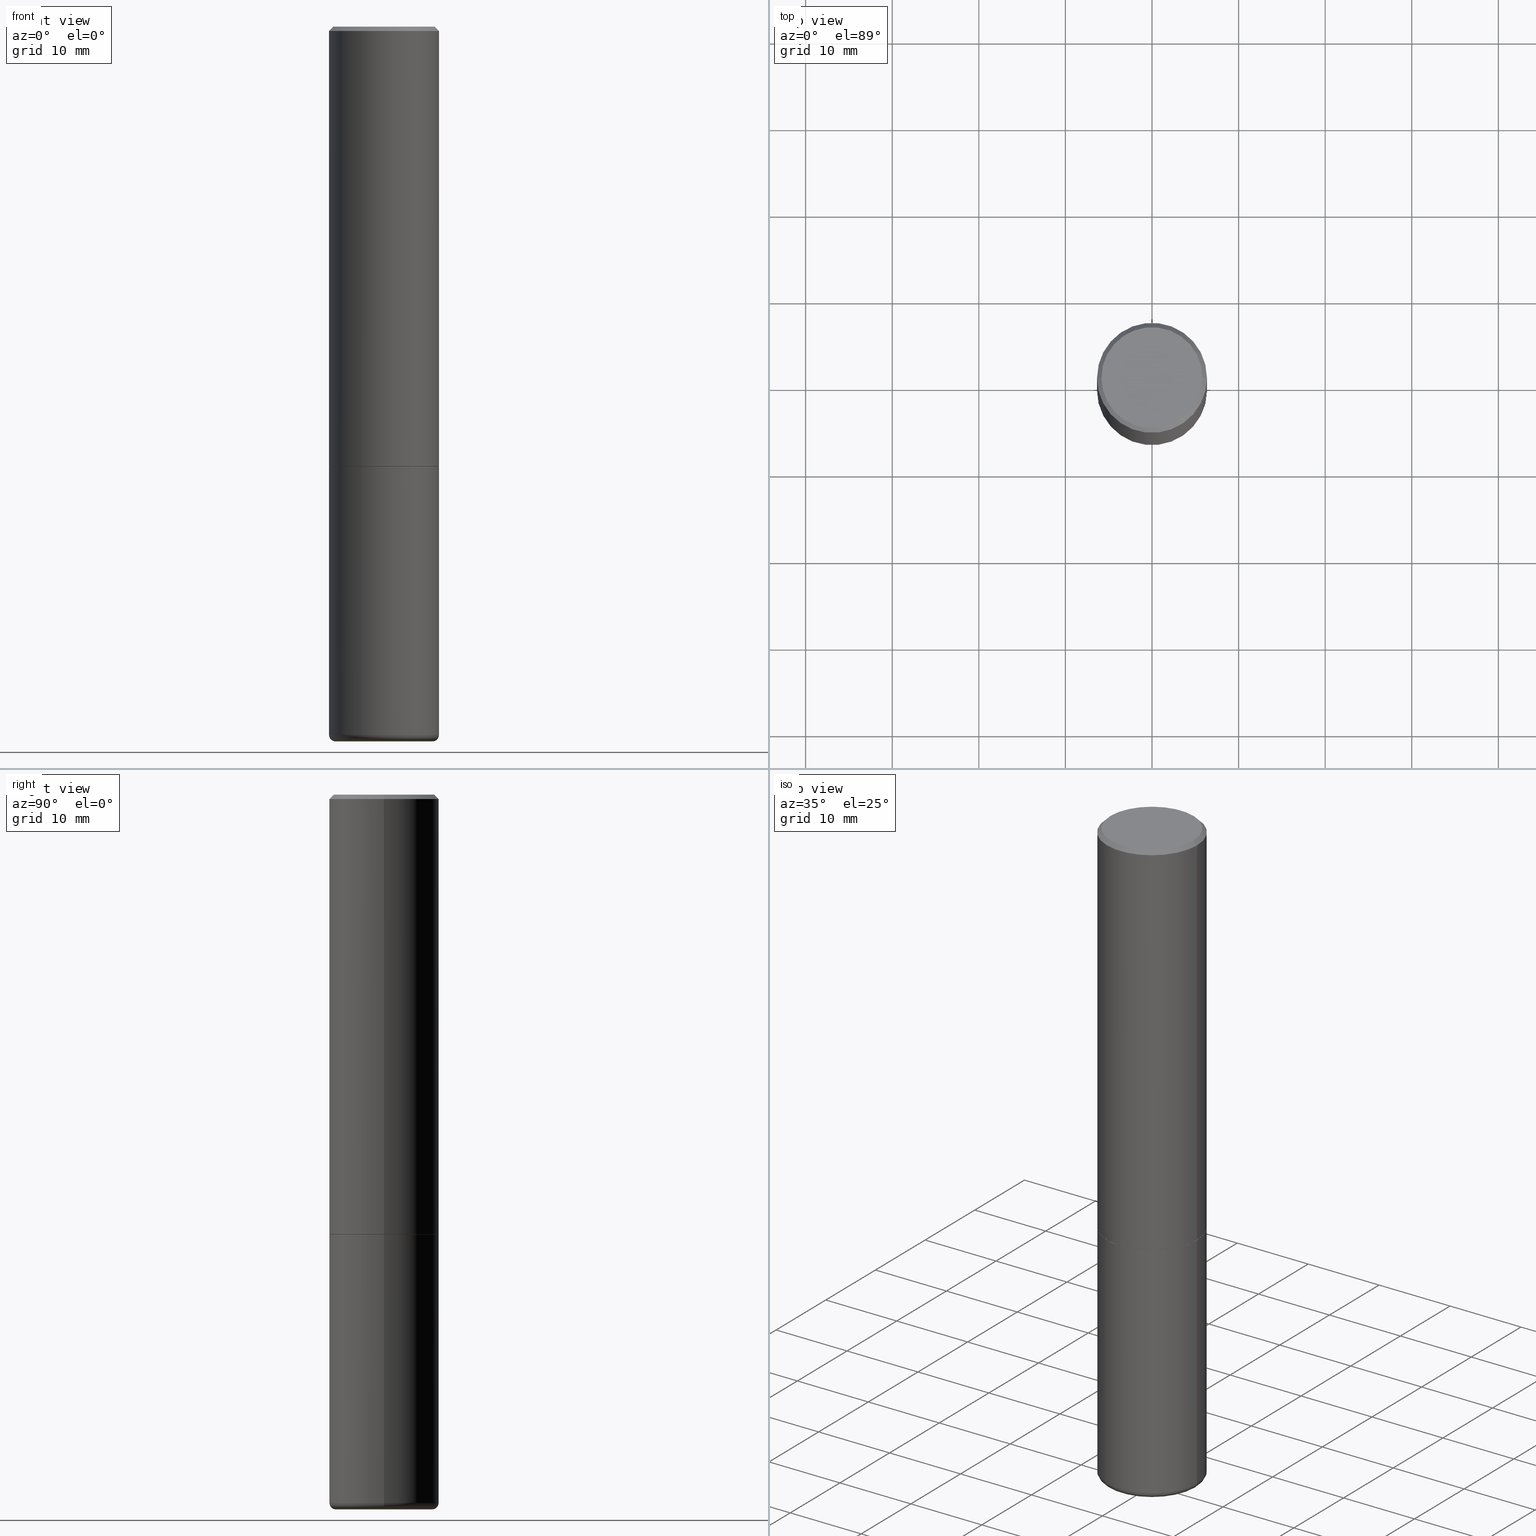
[diagram: canonical four-view strip — front | top / right | iso, engineering-drawing reading convention]
A machine part, canonical four-view strip (front | top / right | iso — engineering-drawing reading convention). The complete STEP part file that produces these views, byte-faithful:
ISO-10303-21;
HEADER;
FILE_DESCRIPTION (( 'STEP AP203' ),
    '1' );
FILE_NAME ('34801.STEP',
    '2022-11-02T20:18:55',
    ( '' ),
    ( '' ),
    'SwSTEP 2.0',
    'SolidWorks 2022',
    '' );
FILE_SCHEMA (( 'CONFIG_CONTROL_DESIGN' ));
ENDSEC;

DATA;
#1 = DATE_AND_TIME ( #267, #6 ) ;
#2 = ORIENTED_EDGE ( 'NONE', *, *, #219, .T. ) ;
#3 = CARTESIAN_POINT ( 'NONE',  ( 4.890937612370273194E-29, -6.982962677686291165E-15, -2.000000000000000000 ) ) ;
#4 = CC_DESIGN_PERSON_AND_ORGANIZATION_ASSIGNMENT ( #304, #490, ( #416 ) ) ;
#5 = EDGE_CURVE ( 'NONE', #446, #434, #256, .T. ) ;
#6 = LOCAL_TIME ( 16, 18, 55.00000000000000000, #377 ) ;
#7 = LOCAL_TIME ( 16, 18, 55.00000000000000000, #381 ) ;
#8 = FACE_OUTER_BOUND ( 'NONE', #213, .T. ) ;
#9 = PERSON_AND_ORGANIZATION_ROLE ( 'creator' ) ;
#10 = DIRECTION ( 'NONE',  ( -2.445468806185136597E-29, 3.491481338843145583E-15, 1.000000000000000000 ) ) ;
#11 = DIRECTION ( 'NONE',  ( 2.445468806185136597E-29, -3.491481338843145583E-15, -1.000000000000000000 ) ) ;
#12 = PRODUCT_RELATED_PRODUCT_CATEGORY ( 'detail', '', ( #278 ) ) ;
#13 = VECTOR ( 'NONE', #18, 39.37007874015748854 ) ;
#14 = CARTESIAN_POINT ( 'NONE',  ( -0.2499999999999994171, 1.675911042644699238E-15, -0.02000000000000012879 ) ) ;
#15 = ORIENTED_EDGE ( 'NONE', *, *, #335, .F. ) ;
#16 = PLANE ( 'NONE',  #84 ) ;
#17 = ORIENTED_EDGE ( 'NONE', *, *, #197, .T. ) ;
#18 = DIRECTION ( 'NONE',  ( 0.9999619230641714207, -6.890705306874825328E-15, -0.008726535498369011531 ) ) ;
#19 = EDGE_LOOP ( 'NONE', ( #443, #250 ) ) ;
#20 = CIRCLE ( 'NONE', #141, 0.02999999999999981501 ) ;
#21 = TOROIDAL_SURFACE ( 'NONE', #91, 0.2200000000000002232, 0.02999999999999980807 ) ;
#22 = FACE_OUTER_BOUND ( 'NONE', #277, .T. ) ;
#23 = ORIENTED_EDGE ( 'NONE', *, *, #261, .F. ) ;
#24 = APPLICATION_PROTOCOL_DEFINITION ( 'international standard', 'config_control_design', 1994, #289 ) ;
#25 = DIRECTION ( 'NONE',  ( 1.000000000000000000, -6.982962677686269866E-15, 4.883557194083114022E-29 ) ) ;
#26 = DIRECTION ( 'NONE',  ( -2.445468806185136597E-29, 3.491481338843145583E-15, 1.000000000000000000 ) ) ;
#27 = DIRECTION ( 'NONE',  ( 1.000000000000000000, -6.982962677686264344E-15, 0.000000000000000000 ) ) ;
#28 = ORIENTED_EDGE ( 'NONE', *, *, #398, .T. ) ;
#29 = ORGANIZATION ( 'UNSPECIFIED', 'UNSPECIFIED', '' ) ;
#30 = PLANE ( 'NONE',  #157 ) ;
#31 = ORIENTED_EDGE ( 'NONE', *, *, #71, .T. ) ;
#32 = CARTESIAN_POINT ( 'NONE',  ( 0.1930732039350491758, -1.267108020581511100E-14, -3.249767298070359800 ) ) ;
#33 = VERTEX_POINT ( 'NONE', #403 ) ;
#34 = DATE_AND_TIME ( #229, #400 ) ;
#35 = VERTEX_POINT ( 'NONE', #223 ) ;
#36 = AXIS2_PLACEMENT_3D ( 'NONE', #191, #10, #344 ) ;
#37 = AXIS2_PLACEMENT_3D ( 'NONE', #176, #325, #476 ) ;
#38 = PERSON_AND_ORGANIZATION ( #366, #29 ) ;
#39 = DIRECTION ( 'NONE',  ( -2.445468806185136597E-29, 3.491481338843145583E-15, 1.000000000000000000 ) ) ;
#40 = ADVANCED_FACE ( 'NONE', ( #337 ), #30, .F. ) ;
#41 = CARTESIAN_POINT ( 'NONE',  ( 4.888492143564087591E-29, -6.979471196347447369E-15, -1.998999999999999888 ) ) ;
#42 = DIRECTION ( 'NONE',  ( 1.000000000000000000, -6.982962677686266711E-15, 4.876176775795935232E-29 ) ) ;
#43 = TOROIDAL_SURFACE ( 'NONE', #83, 0.2200000000000002232, 0.02999999999999980807 ) ;
#44 = ADVANCED_FACE ( 'NONE', ( #106 ), #43, .T. ) ;
#45 = AXIS2_PLACEMENT_3D ( 'NONE', #275, #11, #435 ) ;
#46 = CC_DESIGN_APPROVAL ( #259, ( #416 ) ) ;
#47 = DIRECTION ( 'NONE',  ( 2.445468806185136597E-29, -3.491481338843145583E-15, -1.000000000000000000 ) ) ;
#48 = CARTESIAN_POINT ( 'NONE',  ( -0.2197382039350491423, -9.812890674299962335E-15, -3.250000000000000000 ) ) ;
#49 = DIRECTION ( 'NONE',  ( -2.445468806185136877E-29, 3.491481338843145188E-15, 1.000000000000000000 ) ) ;
#50 = CIRCLE ( 'NONE', #347, 0.2499999999999996669 ) ;
#51 = CONICAL_SURFACE ( 'NONE', #59, 0.2499999999999994171, 0.7853981633974489451 ) ;
#52 = DIRECTION ( 'NONE',  ( -2.445468806185136597E-29, 3.491481338843145583E-15, 1.000000000000000000 ) ) ;
#53 = ORIENTED_EDGE ( 'NONE', *, *, #162, .T. ) ;
#54 = LINE ( 'NONE', #438, #330 ) ;
#55 = ORIENTED_EDGE ( 'NONE', *, *, #206, .T. ) ;
#56 = CARTESIAN_POINT ( 'NONE',  ( 0.2299999999999992606, -1.681434332853594870E-15, 8.537024980212318048E-18 ) ) ;
#57 = ORIENTED_EDGE ( 'NONE', *, *, #69, .F. ) ;
#58 = AXIS2_PLACEMENT_3D ( 'NONE', #196, #39, #352 ) ;
#59 = AXIS2_PLACEMENT_3D ( 'NONE', #393, #317, #170 ) ;
#60 = CARTESIAN_POINT ( 'NONE',  ( 4.890937612370273194E-29, -6.982962677686291165E-15, -2.000000000000000000 ) ) ;
#61 = EDGE_LOOP ( 'NONE', ( #282, #467 ) ) ;
#62 = DIRECTION ( 'NONE',  ( 1.000000000000000000, -6.982962677686269077E-15, 0.000000000000000000 ) ) ;
#63 = DIRECTION ( 'NONE',  ( -2.445468806185136597E-29, 3.491481338843145583E-15, 1.000000000000000000 ) ) ;
#64 = ORIENTED_EDGE ( 'NONE', *, *, #248, .F. ) ;
#65 = CARTESIAN_POINT ( 'NONE',  ( 4.890937612370273194E-29, -6.982962677686291165E-15, -2.000000000000000000 ) ) ;
#66 = VECTOR ( 'NONE', #260, 39.37007874015748143 ) ;
#67 = CIRCLE ( 'NONE', #150, 0.2500000000000000555 ) ;
#68 = DIRECTION ( 'NONE',  ( 1.000000000000000000, -6.982962677686246200E-15, 0.000000000000000000 ) ) ;
#69 = EDGE_CURVE ( 'NONE', #245, #295, #20, .T. ) ;
#70 = EDGE_LOOP ( 'NONE', ( #221, #28, #329, #477 ) ) ;
#71 = EDGE_CURVE ( 'NONE', #177, #434, #449, .T. ) ;
#72 = CALENDAR_DATE ( 2022, 2, 11 ) ;
#73 = ORIENTED_EDGE ( 'NONE', *, *, #398, .F. ) ;
#74 = PLANE ( 'NONE',  #306 ) ;
#75 = CARTESIAN_POINT ( 'NONE',  ( 7.947204554791619182E-29, -1.134650187679537143E-14, -3.249767298070359800 ) ) ;
#76 = CIRCLE ( 'NONE', #297, 0.2489999999999996660 ) ;
#77 = APPROVAL_STATUS ( 'not_yet_approved' ) ;
#78 = FACE_OUTER_BOUND ( 'NONE', #186, .T. ) ;
#79 = SHAPE_DEFINITION_REPRESENTATION ( #350, #300 ) ;
#80 = LINE ( 'NONE', #268, #481 ) ;
#81 = PERSON_AND_ORGANIZATION_ROLE ( 'design_supplier' ) ;
#82 = DIRECTION ( 'NONE',  ( 2.445468806185136597E-29, -3.491481338843145583E-15, -1.000000000000000000 ) ) ;
#83 = AXIS2_PLACEMENT_3D ( 'NONE', #454, #212, #375 ) ;
#84 = AXIS2_PLACEMENT_3D ( 'NONE', #130, #285, #432 ) ;
#85 = DIRECTION ( 'NONE',  ( 2.445468806185136597E-29, -3.491481338843145583E-15, -1.000000000000000000 ) ) ;
#86 = ADVANCED_FACE ( 'NONE', ( #218 ), #74, .F. ) ;
#87 = EDGE_CURVE ( 'NONE', #33, #35, #50, .T. ) ;
#88 = CARTESIAN_POINT ( 'NONE',  ( 7.947773620101693940E-29, -1.134731435124022443E-14, -3.250000000000000000 ) ) ;
#89 = CARTESIAN_POINT ( 'NONE',  ( 0.2500000000000000555, -1.298831456884382237E-14, -3.220001142308074993 ) ) ;
#90 = EDGE_CURVE ( 'NONE', #98, #166, #80, .T. ) ;
#91 = AXIS2_PLACEMENT_3D ( 'NONE', #211, #63, #25 ) ;
#92 = FACE_OUTER_BOUND ( 'NONE', #183, .T. ) ;
#93 = ADVANCED_FACE ( 'NONE', ( #119 ), #108, .F. ) ;
#94 = ORIENTED_EDGE ( 'NONE', *, *, #394, .T. ) ;
#95 = CARTESIAN_POINT ( 'NONE',  ( 7.947204554791619182E-29, -1.134650187679537143E-14, -3.249767298070359800 ) ) ;
#96 = ORIENTED_EDGE ( 'NONE', *, *, #439, .T. ) ;
#97 = CARTESIAN_POINT ( 'NONE',  ( -0.2489999999999996660, -5.208412811295422462E-15, -2.000000000000000000 ) ) ;
#98 = VERTEX_POINT ( 'NONE', #302 ) ;
#99 = AXIS2_PLACEMENT_3D ( 'NONE', #311, #228, #346 ) ;
#100 = CIRCLE ( 'NONE', #209, 0.2499999999999996669 ) ;
#101 = APPLICATION_PROTOCOL_DEFINITION ( 'international standard', 'config_control_design', 1994, #276 ) ;
#102 = EDGE_CURVE ( 'NONE', #247, #166, #323, .T. ) ;
#103 = ORIENTED_EDGE ( 'NONE', *, *, #167, .T. ) ;
#104 = DIRECTION ( 'NONE',  ( -2.445468806185136597E-29, 3.491481338843145583E-15, 1.000000000000000000 ) ) ;
#105 = ORIENTED_EDGE ( 'NONE', *, *, #126, .T. ) ;
#106 = FACE_OUTER_BOUND ( 'NONE', #70, .T. ) ;
#107 = ORIENTED_EDGE ( 'NONE', *, *, #237, .T. ) ;
#108 = CONICAL_SURFACE ( 'NONE', #442, 0.2197382039350491423, 1.562069680534929894 ) ;
#109 = AXIS2_PLACEMENT_3D ( 'NONE', #88, #164, #272 ) ;
#110 = ORIENTED_EDGE ( 'NONE', *, *, #235, .F. ) ;
#111 = DIRECTION ( 'NONE',  ( -2.445468806185136597E-29, 3.491481338843145583E-15, 1.000000000000000000 ) ) ;
#112 = ADVANCED_FACE ( 'NONE', ( #78 ), #431, .F. ) ;
#113 = FACE_OUTER_BOUND ( 'NONE', #430, .T. ) ;
#114 = CALENDAR_DATE ( 2022, 2, 11 ) ;
#115 = CARTESIAN_POINT ( 'NONE',  ( 7.947773620101693940E-29, -1.134731435124022443E-14, -3.250000000000000000 ) ) ;
#116 = CIRCLE ( 'NONE', #339, 0.2299999999999992606 ) ;
#117 = CARTESIAN_POINT ( 'NONE',  ( 0.2499999999999994171, -1.784954126219742244E-15, -0.02000000000000012879 ) ) ;
#118 = APPROVAL_DATE_TIME ( #224, #371 ) ;
#119 = FACE_OUTER_BOUND ( 'NONE', #321, .T. ) ;
#120 = CC_DESIGN_PERSON_AND_ORGANIZATION_ASSIGNMENT ( #351, #9, ( #312 ) ) ;
#121 = FACE_OUTER_BOUND ( 'NONE', #241, .T. ) ;
#122 = ADVANCED_FACE ( 'NONE', ( #113 ), #422, .F. ) ;
#123 = AXIS2_PLACEMENT_3D ( 'NONE', #384, #417, #42 ) ;
#124 = CIRCLE ( 'NONE', #408, 0.02999999999999981501 ) ;
#125 = CARTESIAN_POINT ( 'NONE',  ( -0.2500000000000000555, -7.336411449154020205E-15, -3.220001142308074993 ) ) ;
#126 = EDGE_CURVE ( 'NONE', #166, #287, #266, .T. ) ;
#127 = EDGE_LOOP ( 'NONE', ( #96, #360, #447, #23 ) ) ;
#128 = DIRECTION ( 'NONE',  ( -2.445468806185136597E-29, 3.491481338843145583E-15, 1.000000000000000000 ) ) ;
#129 = ORIENTED_EDGE ( 'NONE', *, *, #178, .T. ) ;
#130 = CARTESIAN_POINT ( 'NONE',  ( 1.745740669421613023E-15, 0.2499999999999927003, -2.000000000000000888 ) ) ;
#131 = ORIENTED_EDGE ( 'NONE', *, *, #269, .T. ) ;
#132 = AXIS2_PLACEMENT_3D ( 'NONE', #385, #189, #322 ) ;
#133 = ADVANCED_FACE ( 'NONE', ( #230 ), #413, .T. ) ;
#134 = SECURITY_CLASSIFICATION ( '', '', #190 ) ;
#135 = DIRECTION ( 'NONE',  ( -1.000000000000000000, 7.105427357600969515E-15, 0.000000000000000000 ) ) ;
#136 = ORIENTED_EDGE ( 'NONE', *, *, #197, .F. ) ;
#137 = CARTESIAN_POINT ( 'NONE',  ( 0.2197382039350491423, -1.285482785937054132E-14, -3.250000000000000000 ) ) ;
#138 = ORIENTED_EDGE ( 'NONE', *, *, #303, .F. ) ;
#139 = CC_DESIGN_PERSON_AND_ORGANIZATION_ASSIGNMENT ( #38, #81, ( #416 ) ) ;
#140 = PERSON_AND_ORGANIZATION_ROLE ( 'design_owner' ) ;
#141 = AXIS2_PLACEMENT_3D ( 'NONE', #368, #255, #68 ) ;
#142 = CIRCLE ( 'NONE', #482, 0.2499999999999994171 ) ;
#143 = ORIENTED_EDGE ( 'NONE', *, *, #372, .F. ) ;
#144 = DIMENSIONAL_EXPONENTS ( 1.000000000000000000, 0.000000000000000000, 0.000000000000000000, 0.000000000000000000, 0.000000000000000000, 0.000000000000000000, 0.000000000000000000 ) ;
#145 = DIRECTION ( 'NONE',  ( 1.000000000000000000, -6.982962677686265922E-15, 4.876176775795935793E-29 ) ) ;
#146 = EDGE_CURVE ( 'NONE', #35, #33, #200, .T. ) ;
#147 = MECHANICAL_CONTEXT ( 'NONE', #289, 'mechanical' ) ;
#148 = VERTEX_POINT ( 'NONE', #380 ) ;
#149 = CARTESIAN_POINT ( 'NONE',  ( 0.000000000000000000, 0.000000000000000000, 0.000000000000000000 ) ) ;
#150 = AXIS2_PLACEMENT_3D ( 'NONE', #220, #214, #62 ) ;
#151 = DIRECTION ( 'NONE',  ( -2.438088387897960049E-29, 3.491481338843145188E-15, 1.000000000000000000 ) ) ;
#152 = PERSON_AND_ORGANIZATION ( #366, #29 ) ;
#153 = DIRECTION ( 'NONE',  ( -1.000000000000000000, 6.982962677686265922E-15, -4.876176775795935793E-29 ) ) ;
#154 = DIRECTION ( 'NONE',  ( -2.445468806185136597E-29, 3.491481338843145583E-15, 1.000000000000000000 ) ) ;
#155 = DATE_TIME_ROLE ( 'classification_date' ) ;
#156 = DIRECTION ( 'NONE',  ( -2.445468806185136597E-29, 3.491481338843145583E-15, 1.000000000000000000 ) ) ;
#157 = AXIS2_PLACEMENT_3D ( 'NONE', #411, #151, #145 ) ;
#158 = LOCAL_TIME ( 16, 18, 55.00000000000000000, #410 ) ;
#159 = APPROVAL_DATE_TIME ( #194, #259 ) ;
#160 = EDGE_LOOP ( 'NONE', ( #388, #406, #169, #57 ) ) ;
#161 = CARTESIAN_POINT ( 'NONE',  ( 0.2499999999999996669, -8.725211865769010891E-15, -1.998999999999999888 ) ) ;
#162 = EDGE_CURVE ( 'NONE', #370, #247, #310, .T. ) ;
#163 = CARTESIAN_POINT ( 'NONE',  ( 7.929934496680489280E-29, -1.132408133894856808E-14, -3.243025033220710451 ) ) ;
#164 = DIRECTION ( 'NONE',  ( -2.445468806185136597E-29, 3.491481338843145583E-15, 1.000000000000000000 ) ) ;
#165 = AXIS2_PLACEMENT_3D ( 'NONE', #75, #82, #378 ) ;
#166 = VERTEX_POINT ( 'NONE', #161 ) ;
#167 = EDGE_CURVE ( 'NONE', #290, #148, #338, .T. ) ;
#168 = CARTESIAN_POINT ( 'NONE',  ( -0.2499999999999994171, 1.675911042644699238E-15, -0.02000000000000012879 ) ) ;
#169 = ORIENTED_EDGE ( 'NONE', *, *, #439, .F. ) ;
#170 = DIRECTION ( 'NONE',  ( -1.000000000000000000, 6.982962677686266711E-15, 0.000000000000000000 ) ) ;
#171 = ORIENTED_EDGE ( 'NONE', *, *, #87, .F. ) ;
#172 = FACE_OUTER_BOUND ( 'NONE', #470, .T. ) ;
#173 = ORIENTED_EDGE ( 'NONE', *, *, #167, .F. ) ;
#174 = AXIS2_PLACEMENT_3D ( 'NONE', #41, #457, #420 ) ;
#175 = AXIS2_PLACEMENT_3D ( 'NONE', #425, #85, #232 ) ;
#176 = CARTESIAN_POINT ( 'NONE',  ( 0.000000000000000000, 0.000000000000000000, 0.000000000000000000 ) ) ;
#177 = VERTEX_POINT ( 'NONE', #163 ) ;
#178 = EDGE_CURVE ( 'NONE', #294, #295, #313, .T. ) ;
#179 =( NAMED_UNIT ( * ) SI_UNIT ( $, .STERADIAN. ) SOLID_ANGLE_UNIT ( ) );
#180 = ORIENTED_EDGE ( 'NONE', *, *, #386, .F. ) ;
#181 = CONICAL_SURFACE ( 'NONE', #45, 0.2499999999999994171, 0.7853981633974489451 ) ;
#182 = CC_DESIGN_DATE_AND_TIME_ASSIGNMENT ( #1, #379, ( #312 ) ) ;
#183 = EDGE_LOOP ( 'NONE', ( #173, #17, #215, #138 ) ) ;
#184 = DIRECTION ( 'NONE',  ( 1.000000000000000000, -6.982962677686265133E-15, 0.000000000000000000 ) ) ;
#185 = CYLINDRICAL_SURFACE ( 'NONE', #452, 0.2499999999999998612 ) ;
#186 = EDGE_LOOP ( 'NONE', ( #395, #31, #236 ) ) ;
#187 = APPROVAL_DATE_TIME ( #374, #365 ) ;
#188 = VECTOR ( 'NONE', #429, 39.37007874015748143 ) ;
#189 = DIRECTION ( 'NONE',  ( -2.445468806185136597E-29, 3.491481338843145583E-15, 1.000000000000000000 ) ) ;
#190 = SECURITY_CLASSIFICATION_LEVEL ( 'unclassified' ) ;
#191 = CARTESIAN_POINT ( 'NONE',  ( -2.087702828670439639E-46, 2.980686340760894400E-32, 8.537024980200822558E-18 ) ) ;
#192 = ADVANCED_FACE ( 'NONE', ( #8 ), #444, .T. ) ;
#193 = CARTESIAN_POINT ( 'NONE',  ( -0.2489999999999996660, -5.213711265643644864E-15, -2.000000000000000000 ) ) ;
#194 = DATE_AND_TIME ( #114, #7 ) ;
#195 = LINE ( 'NONE', #349, #225 ) ;
#196 = CARTESIAN_POINT ( 'NONE',  ( 4.890937612370273194E-29, -6.982962677686291165E-15, -2.000000000000000000 ) ) ;
#197 = EDGE_CURVE ( 'NONE', #290, #287, #461, .T. ) ;
#198 = CARTESIAN_POINT ( 'NONE',  ( 4.890937612370304688E-31, -6.982962677686335982E-17, -0.02000000000000012879 ) ) ;
#199 = DIRECTION ( 'NONE',  ( -0.7071067811865479058, 2.468850131082261399E-15, -0.7071067811865470176 ) ) ;
#200 = CIRCLE ( 'NONE', #58, 0.2499999999999996669 ) ;
#201 = CYLINDRICAL_SURFACE ( 'NONE', #37, 0.2499999999999998612 ) ;
#202 = ORIENTED_EDGE ( 'NONE', *, *, #102, .F. ) ;
#203 = DIRECTION ( 'NONE',  ( -2.445468806185136597E-29, 3.491481338843145583E-15, 1.000000000000000000 ) ) ;
#204 = EDGE_LOOP ( 'NONE', ( #480, #364, #316, #202 ) ) ;
#205 = LINE ( 'NONE', #279, #188 ) ;
#206 = EDGE_CURVE ( 'NONE', #177, #446, #195, .T. ) ;
#207 = VERTEX_POINT ( 'NONE', #463 ) ;
#208 = AXIS2_PLACEMENT_3D ( 'NONE', #115, #47, #308 ) ;
#209 = AXIS2_PLACEMENT_3D ( 'NONE', #314, #466, #389 ) ;
#210 = ADVANCED_FACE ( 'NONE', ( #121 ), #231, .F. ) ;
#211 = CARTESIAN_POINT ( 'NONE',  ( 7.874412349394905166E-29, -1.124257389942225570E-14, -3.220001142308074993 ) ) ;
#212 = DIRECTION ( 'NONE',  ( -2.445468806185136597E-29, 3.491481338843145583E-15, 1.000000000000000000 ) ) ;
#213 = EDGE_LOOP ( 'NONE', ( #2, #53, #274, #324 ) ) ;
#214 = DIRECTION ( 'NONE',  ( -2.445468806185136597E-29, 3.491481338843145583E-15, 1.000000000000000000 ) ) ;
#215 = ORIENTED_EDGE ( 'NONE', *, *, #248, .T. ) ;
#216 = CC_DESIGN_APPROVAL ( #371, ( #312 ) ) ;
#217 = DIRECTION ( 'NONE',  ( -2.445468806185136597E-29, 3.491481338843145583E-15, 1.000000000000000000 ) ) ;
#218 = FACE_OUTER_BOUND ( 'NONE', #392, .T. ) ;
#219 = EDGE_CURVE ( 'NONE', #98, #370, #271, .T. ) ;
#220 = CARTESIAN_POINT ( 'NONE',  ( 7.874412349394905166E-29, -1.124257389942225570E-14, -3.220001142308074993 ) ) ;
#221 = ORIENTED_EDGE ( 'NONE', *, *, #286, .F. ) ;
#222 = PERSON_AND_ORGANIZATION ( #366, #29 ) ;
#223 = CARTESIAN_POINT ( 'NONE',  ( 0.2499999999999996669, -8.728703347107855476E-15, -2.000000000000000000 ) ) ;
#224 = DATE_AND_TIME ( #72, #158 ) ;
#225 = VECTOR ( 'NONE', #270, 39.37007874015748143 ) ;
#226 = DIRECTION ( 'NONE',  ( -1.000000000000000000, 6.982962677686265133E-15, 0.000000000000000000 ) ) ;
#227 = DIRECTION ( 'NONE',  ( 0.7071067811865232589, -2.468850131082003836E-15, 0.7071067811865715536 ) ) ;
#228 = DIRECTION ( 'NONE',  ( -2.445468806185136597E-29, 3.491481338843145583E-15, 1.000000000000000000 ) ) ;
#229 = CALENDAR_DATE ( 2022, 2, 11 ) ;
#230 = FACE_OUTER_BOUND ( 'NONE', #293, .T. ) ;
#231 = CONICAL_SURFACE ( 'NONE', #175, 0.1930732039350491758, 1.535889741755009918 ) ;
#232 = DIRECTION ( 'NONE',  ( -1.000000000000000000, 6.982962677686266711E-15, 0.000000000000000000 ) ) ;
#233 = UNCERTAINTY_MEASURE_WITH_UNIT (LENGTH_MEASURE( 1.000000000000000082E-05 ), #331, 'distance_accuracy_value', 'NONE');
#234 = LINE ( 'NONE', #387, #315 ) ;
#235 = EDGE_CURVE ( 'NONE', #294, #33, #205, .T. ) ;
#236 = ORIENTED_EDGE ( 'NONE', *, *, #5, .F. ) ;
#237 = EDGE_CURVE ( 'NONE', #166, #247, #100, .T. ) ;
#238 = DIRECTION ( 'NONE',  ( 7.105427357601001859E-15, 1.000000000000000000, -3.491481338843145583E-15 ) ) ;
#239 = CLOSED_SHELL ( 'NONE', ( #192, #448, #309, #243, #133, #479, #40, #86 ) ) ;
#240 = AXIS2_PLACEMENT_3D ( 'NONE', #65, #217, #453 ) ;
#241 = EDGE_LOOP ( 'NONE', ( #485, #55, #15 ) ) ;
#242 = LINE ( 'NONE', #137, #13 ) ;
#243 = ADVANCED_FACE ( 'NONE', ( #172 ), #51, .T. ) ;
#244 = DIRECTION ( 'NONE',  ( -2.445468806185136877E-29, 3.491481338843145188E-15, 1.000000000000000000 ) ) ;
#245 = VERTEX_POINT ( 'NONE', #468 ) ;
#246 = LINE ( 'NONE', #48, #390 ) ;
#247 = VERTEX_POINT ( 'NONE', #426 ) ;
#248 = EDGE_CURVE ( 'NONE', #287, #252, #489, .T. ) ;
#249 = VECTOR ( 'NONE', #382, 39.37007874015748854 ) ;
#250 = ORIENTED_EDGE ( 'NONE', *, *, #87, .T. ) ;
#251 = FACE_OUTER_BOUND ( 'NONE', #474, .T. ) ;
#252 = VERTEX_POINT ( 'NONE', #168 ) ;
#253 = ORIENTED_EDGE ( 'NONE', *, *, #296, .F. ) ;
#254 = FACE_OUTER_BOUND ( 'NONE', #204, .T. ) ;
#255 = DIRECTION ( 'NONE',  ( -6.982962677686266711E-15, -1.000000000000000000, 3.491481338843145583E-15 ) ) ;
#256 = CIRCLE ( 'NONE', #280, 0.1930732039350491758 ) ;
#257 = AXIS2_PLACEMENT_3D ( 'NONE', #198, #203, #319 ) ;
#258 = PERSON_AND_ORGANIZATION ( #366, #29 ) ;
#259 = APPROVAL ( #340, 'UNSPECIFIED' ) ;
#260 = DIRECTION ( 'NONE',  ( -0.9993908270190957621, 6.856857904024556470E-15, -0.03489949670250108021 ) ) ;
#261 = EDGE_CURVE ( 'NONE', #295, #35, #54, .T. ) ;
#262 = DIRECTION ( 'NONE',  ( -2.445468806185136877E-29, 3.491481338843145188E-15, 1.000000000000000000 ) ) ;
#263 =( GEOMETRIC_REPRESENTATION_CONTEXT ( 3 ) GLOBAL_UNCERTAINTY_ASSIGNED_CONTEXT ( ( #233 ) ) GLOBAL_UNIT_ASSIGNED_CONTEXT ( ( #331, #483, #179 ) ) REPRESENTATION_CONTEXT ( 'NONE', 'WORKASPACE' ) );
#264 = CARTESIAN_POINT ( 'NONE',  ( 0.2499999999999995282, -1.745740669421563325E-15, 1.219044193948981566E-29 ) ) ;
#265 = CC_DESIGN_PERSON_AND_ORGANIZATION_ASSIGNMENT ( #258, #140, ( #278 ) ) ;
#266 = LINE ( 'NONE', #264, #488 ) ;
#267 = CALENDAR_DATE ( 2022, 2, 11 ) ;
#268 = CARTESIAN_POINT ( 'NONE',  ( 0.2489999999999996660, -8.721720384430167884E-15, -2.000000000000000000 ) ) ;
#269 = EDGE_CURVE ( 'NONE', #148, #290, #116, .T. ) ;
#270 = DIRECTION ( 'NONE',  ( 0.9993908270190957621, -6.978169709227541488E-15, -0.03489949670250108021 ) ) ;
#271 = CIRCLE ( 'NONE', #132, 0.2489999999999996660 ) ;
#272 = DIRECTION ( 'NONE',  ( 1.000000000000000000, -6.982962677686265133E-15, 0.000000000000000000 ) ) ;
#273 = MANIFOLD_SOLID_BREP ( 'Body-Move/Copy2[2]', #239 ) ;
#274 = ORIENTED_EDGE ( 'NONE', *, *, #237, .F. ) ;
#275 = CARTESIAN_POINT ( 'NONE',  ( 4.890937612370304688E-31, -6.982962677686335982E-17, -0.02000000000000012879 ) ) ;
#276 = APPLICATION_CONTEXT ( 'configuration controlled 3d designs of mechanical parts and assemblies' ) ;
#277 = EDGE_LOOP ( 'NONE', ( #110, #129, #326, #171 ) ) ;
#278 = PRODUCT ( '34801', '34801', '', ( #147 ) ) ;
#279 = CARTESIAN_POINT ( 'NONE',  ( -0.2499999999999998612, 1.776356839400249479E-15, -1.229733772563725745E-29 ) ) ;
#280 = AXIS2_PLACEMENT_3D ( 'NONE', #332, #26, #405 ) ;
#281 = VECTOR ( 'NONE', #199, 39.37007874015748854 ) ;
#282 = ORIENTED_EDGE ( 'NONE', *, *, #219, .F. ) ;
#283 = LINE ( 'NONE', #14, #281 ) ;
#284 = ORIENTED_EDGE ( 'NONE', *, *, #102, .T. ) ;
#285 = DIRECTION ( 'NONE',  ( 2.438088387897960049E-29, -3.491481338843145188E-15, -1.000000000000000000 ) ) ;
#286 = EDGE_CURVE ( 'NONE', #207, #294, #124, .T. ) ;
#287 = VERTEX_POINT ( 'NONE', #396 ) ;
#288 = FACE_OUTER_BOUND ( 'NONE', #160, .T. ) ;
#289 = APPLICATION_CONTEXT ( 'configuration controlled 3d designs of mechanical parts and assemblies' ) ;
#290 = VERTEX_POINT ( 'NONE', #56 ) ;
#291 = CC_DESIGN_APPROVAL ( #365, ( #134 ) ) ;
#292 = DIRECTION ( 'NONE',  ( -2.445468806185136597E-29, 3.491481338843145583E-15, 1.000000000000000000 ) ) ;
#293 = EDGE_LOOP ( 'NONE', ( #358, #284, #105, #487 ) ) ;
#294 = VERTEX_POINT ( 'NONE', #125 ) ;
#295 = VERTEX_POINT ( 'NONE', #89 ) ;
#296 = EDGE_CURVE ( 'NONE', #446, #245, #242, .T. ) ;
#297 = AXIS2_PLACEMENT_3D ( 'NONE', #60, #373, #27 ) ;
#298 = CARTESIAN_POINT ( 'NONE',  ( 4.890937612370304688E-31, -6.982962677686335982E-17, -0.02000000000000012879 ) ) ;
#299 = CARTESIAN_POINT ( 'NONE',  ( -0.1930732039350491758, -9.998278899655613929E-15, -3.249767298070359800 ) ) ;
#300 = ADVANCED_BREP_SHAPE_REPRESENTATION ( '34801', ( #428, #273, #433 ), #263 ) ;
#301 = COORDINATED_UNIVERSAL_TIME_OFFSET ( 5, 0, .BEHIND. ) ;
#302 = CARTESIAN_POINT ( 'NONE',  ( 0.2489999999999996660, -8.721720384430167884E-15, -2.000000000000000000 ) ) ;
#303 = EDGE_CURVE ( 'NONE', #148, #252, #283, .T. ) ;
#304 = PERSON_AND_ORGANIZATION ( #366, #29 ) ;
#305 = DIRECTION ( 'NONE',  ( 2.445468806185136597E-29, -3.491481338843145583E-15, -1.000000000000000000 ) ) ;
#306 = AXIS2_PLACEMENT_3D ( 'NONE', #327, #459, #153 ) ;
#307 = APPROVAL_PERSON_ORGANIZATION ( #402, #371, #412 ) ;
#308 = DIRECTION ( 'NONE',  ( -1.000000000000000000, 6.982962677686265133E-15, 0.000000000000000000 ) ) ;
#309 = ADVANCED_FACE ( 'NONE', ( #92 ), #181, .T. ) ;
#310 = LINE ( 'NONE', #193, #465 ) ;
#311 = CARTESIAN_POINT ( 'NONE',  ( 7.874412349394905166E-29, -1.124257389942225570E-14, -3.220001142308074993 ) ) ;
#312 = PRODUCT_DEFINITION ( 'UNKNOWN', '', #416, #333 ) ;
#313 = CIRCLE ( 'NONE', #99, 0.2500000000000000555 ) ;
#314 = CARTESIAN_POINT ( 'NONE',  ( 4.888492143564087591E-29, -6.979471196347447369E-15, -1.998999999999999888 ) ) ;
#315 = VECTOR ( 'NONE', #49, 39.37007874015748143 ) ;
#316 = ORIENTED_EDGE ( 'NONE', *, *, #90, .T. ) ;
#317 = DIRECTION ( 'NONE',  ( 2.445468806185136597E-29, -3.491481338843145583E-15, -1.000000000000000000 ) ) ;
#318 = ORIENTED_EDGE ( 'NONE', *, *, #335, .T. ) ;
#319 = DIRECTION ( 'NONE',  ( 1.000000000000000000, -6.982962677686266711E-15, 0.000000000000000000 ) ) ;
#320 = CC_DESIGN_PERSON_AND_ORGANIZATION_ASSIGNMENT ( #419, #345, ( #134 ) ) ;
#321 = EDGE_LOOP ( 'NONE', ( #318, #450, #73, #143 ) ) ;
#322 = DIRECTION ( 'NONE',  ( 1.000000000000000000, -6.982962677686264344E-15, 0.000000000000000000 ) ) ;
#323 = CIRCLE ( 'NONE', #174, 0.2499999999999996669 ) ;
#324 = ORIENTED_EDGE ( 'NONE', *, *, #90, .F. ) ;
#325 = DIRECTION ( 'NONE',  ( -2.445468806185136597E-29, 3.491481338843145583E-15, 1.000000000000000000 ) ) ;
#326 = ORIENTED_EDGE ( 'NONE', *, *, #261, .T. ) ;
#327 = CARTESIAN_POINT ( 'NONE',  ( 1.606081415867835940E-15, 0.2299999999999992606, -7.987721954438205014E-16 ) ) ;
#328 = DIRECTION ( 'NONE',  ( 0.000000000000000000, 0.000000000000000000, 1.000000000000000000 ) ) ;
#329 = ORIENTED_EDGE ( 'NONE', *, *, #69, .T. ) ;
#330 = VECTOR ( 'NONE', #244, 39.37007874015748143 ) ;
#331 =( CONVERSION_BASED_UNIT ( 'INCH', #484 ) LENGTH_UNIT ( ) NAMED_UNIT ( #144 ) );
#332 = CARTESIAN_POINT ( 'NONE',  ( 7.947204554791619182E-29, -1.134650187679537143E-14, -3.249767298070359800 ) ) ;
#333 = DESIGN_CONTEXT ( 'detailed design', #276, 'design' ) ;
#334 = DIRECTION ( 'NONE',  ( 1.000000000000000000, -6.982962677686266711E-15, 4.876176775795935793E-29 ) ) ;
#335 = EDGE_CURVE ( 'NONE', #434, #446, #399, .T. ) ;
#336 = CARTESIAN_POINT ( 'NONE',  ( -0.1930732039350491758, -9.998278899655613929E-15, -3.249767298070359800 ) ) ;
#337 = FACE_OUTER_BOUND ( 'NONE', #61, .T. ) ;
#338 = CIRCLE ( 'NONE', #36, 0.2299999999999992606 ) ;
#339 = AXIS2_PLACEMENT_3D ( 'NONE', #361, #128, #471 ) ;
#340 = APPROVAL_STATUS ( 'not_yet_approved' ) ;
#341 = ADVANCED_FACE ( 'NONE', ( #22 ), #201, .T. ) ;
#342 = DIRECTION ( 'NONE',  ( -0.7071067811865232589, 7.493145998870265808E-15, 0.7071067811865715536 ) ) ;
#343 = APPROVAL_ROLE ( '' ) ;
#344 = DIRECTION ( 'NONE',  ( 1.000000000000000000, -6.982962677686266711E-15, 4.875813741439115469E-29 ) ) ;
#345 = PERSON_AND_ORGANIZATION_ROLE ( 'classification_officer' ) ;
#346 = DIRECTION ( 'NONE',  ( 1.000000000000000000, -6.982962677686269077E-15, 0.000000000000000000 ) ) ;
#347 = AXIS2_PLACEMENT_3D ( 'NONE', #418, #154, #491 ) ;
#348 = CALENDAR_DATE ( 2022, 2, 11 ) ;
#349 = CARTESIAN_POINT ( 'NONE',  ( 0.1930732039350491758, -1.267108020581511100E-14, -3.249767298070359800 ) ) ;
#350 = PRODUCT_DEFINITION_SHAPE ( 'NONE', 'NONE',  #312 ) ;
#351 = PERSON_AND_ORGANIZATION ( #366, #29 ) ;
#352 = DIRECTION ( 'NONE',  ( 1.000000000000000000, -6.982962677686268288E-15, 0.000000000000000000 ) ) ;
#353 = ADVANCED_FACE ( 'NONE', ( #359 ), #16, .F. ) ;
#354 = DIRECTION ( 'NONE',  ( -0.9999619230641714207, 6.952228252019186602E-15, -0.008726535498369011531 ) ) ;
#355 = CARTESIAN_POINT ( 'NONE',  ( 7.947773620101693940E-29, -1.134731435124022443E-14, -3.250000000000000000 ) ) ;
#356 = AXIS2_PLACEMENT_3D ( 'NONE', #369, #292, #486 ) ;
#357 = CC_DESIGN_SECURITY_CLASSIFICATION ( #134, ( #416 ) ) ;
#358 = ORIENTED_EDGE ( 'NONE', *, *, #394, .F. ) ;
#359 = FACE_OUTER_BOUND ( 'NONE', #19, .T. ) ;
#360 = ORIENTED_EDGE ( 'NONE', *, *, #235, .T. ) ;
#361 = CARTESIAN_POINT ( 'NONE',  ( -2.087702828670439639E-46, 2.980686340760894400E-32, 8.537024980200822558E-18 ) ) ;
#362 = DIRECTION ( 'NONE',  ( 1.000000000000000000, -6.982962677686266711E-15, 0.000000000000000000 ) ) ;
#363 = CIRCLE ( 'NONE', #460, 0.2197382039350491423 ) ;
#364 = ORIENTED_EDGE ( 'NONE', *, *, #469, .T. ) ;
#365 = APPROVAL ( #458, 'UNSPECIFIED' ) ;
#366 = PERSON ( 'UNSPECIFIED', 'UNSPECIFIED', 'UNSPECIFIED', ('UNSPECIFIED'), ('UNSPECIFIED'), ('UNSPECIFIED') ) ;
#367 = CYLINDRICAL_SURFACE ( 'NONE', #356, 0.2499999999999995282 ) ;
#368 = CARTESIAN_POINT ( 'NONE',  ( 0.2200000000000002232, -1.277882568851323406E-14, -3.220001142308074993 ) ) ;
#369 = CARTESIAN_POINT ( 'NONE',  ( 0.000000000000000000, 0.000000000000000000, 0.000000000000000000 ) ) ;
#370 = VERTEX_POINT ( 'NONE', #97 ) ;
#371 = APPROVAL ( #77, 'UNSPECIFIED' ) ;
#372 = EDGE_CURVE ( 'NONE', #434, #207, #246, .T. ) ;
#373 = DIRECTION ( 'NONE',  ( -2.445468806185136597E-29, 3.491481338843145583E-15, 1.000000000000000000 ) ) ;
#374 = DATE_AND_TIME ( #348, #424 ) ;
#375 = DIRECTION ( 'NONE',  ( 1.000000000000000000, -6.982962677686269866E-15, 4.883557194083114022E-29 ) ) ;
#376 = AXIS2_PLACEMENT_3D ( 'NONE', #95, #52, #362 ) ;
#377 = COORDINATED_UNIVERSAL_TIME_OFFSET ( 5, 0, .BEHIND. ) ;
#378 = DIRECTION ( 'NONE',  ( -1.000000000000000000, 6.982962677686266711E-15, 0.000000000000000000 ) ) ;
#379 = DATE_TIME_ROLE ( 'creation_date' ) ;
#380 = CARTESIAN_POINT ( 'NONE',  ( -0.2299999999999992606, 1.640996229256267786E-15, 8.537024980189468815E-18 ) ) ;
#381 = COORDINATED_UNIVERSAL_TIME_OFFSET ( 5, 0, .BEHIND. ) ;
#382 = DIRECTION ( 'NONE',  ( 0.7071067811865479058, -7.319954787623256045E-15, -0.7071067811865470176 ) ) ;
#383 = CIRCLE ( 'NONE', #109, 0.2197382039350491423 ) ;
#384 = CARTESIAN_POINT ( 'NONE',  ( 0.000000000000000000, 0.000000000000000000, 0.000000000000000000 ) ) ;
#385 = CARTESIAN_POINT ( 'NONE',  ( 4.890937612370273194E-29, -6.982962677686291165E-15, -2.000000000000000000 ) ) ;
#386 = EDGE_CURVE ( 'NONE', #245, #207, #383, .T. ) ;
#387 = CARTESIAN_POINT ( 'NONE',  ( -0.2499999999999995282, 1.776356839400247112E-15, -1.229733772563724063E-29 ) ) ;
#388 = ORIENTED_EDGE ( 'NONE', *, *, #386, .T. ) ;
#389 = DIRECTION ( 'NONE',  ( 1.000000000000000000, -6.982962677686264344E-15, 0.000000000000000000 ) ) ;
#390 = VECTOR ( 'NONE', #354, 39.37007874015748854 ) ;
#391 = APPROVAL_PERSON_ORGANIZATION ( #152, #365, #462 ) ;
#392 = EDGE_LOOP ( 'NONE', ( #131, #103 ) ) ;
#393 = CARTESIAN_POINT ( 'NONE',  ( 4.890937612370304688E-31, -6.982962677686335982E-17, -0.02000000000000012879 ) ) ;
#394 = EDGE_CURVE ( 'NONE', #247, #252, #234, .T. ) ;
#395 = ORIENTED_EDGE ( 'NONE', *, *, #206, .F. ) ;
#396 = CARTESIAN_POINT ( 'NONE',  ( 0.2499999999999994171, -1.784954126219742244E-15, -0.02000000000000012879 ) ) ;
#397 = DIRECTION ( 'NONE',  ( -2.445468806185136597E-29, 3.491481338843145583E-15, 1.000000000000000000 ) ) ;
#398 = EDGE_CURVE ( 'NONE', #207, #245, #363, .T. ) ;
#399 = CIRCLE ( 'NONE', #376, 0.1930732039350491758 ) ;
#400 = LOCAL_TIME ( 16, 18, 55.00000000000000000, #301 ) ;
#401 = ORIENTED_EDGE ( 'NONE', *, *, #269, .F. ) ;
#402 = PERSON_AND_ORGANIZATION ( #366, #29 ) ;
#403 = CARTESIAN_POINT ( 'NONE',  ( -0.2499999999999996669, -7.336411449154023361E-15, -2.000000000000000000 ) ) ;
#404 = DIRECTION ( 'NONE',  ( 1.000000000000000000, -6.982962677686266711E-15, 0.000000000000000000 ) ) ;
#405 = DIRECTION ( 'NONE',  ( 1.000000000000000000, -6.982962677686266711E-15, 0.000000000000000000 ) ) ;
#406 = ORIENTED_EDGE ( 'NONE', *, *, #286, .T. ) ;
#407 = ORIENTED_EDGE ( 'NONE', *, *, #475, .T. ) ;
#408 = AXIS2_PLACEMENT_3D ( 'NONE', #473, #238, #135 ) ;
#409 =( LENGTH_UNIT ( ) NAMED_UNIT ( * ) SI_UNIT ( $, .METRE. ) );
#410 = COORDINATED_UNIVERSAL_TIME_OFFSET ( 5, 0, .BEHIND. ) ;
#411 = CARTESIAN_POINT ( 'NONE',  ( 4.890937612370273194E-29, -6.982962677686291165E-15, -2.000000000000000000 ) ) ;
#412 = APPROVAL_ROLE ( '' ) ;
#413 = CYLINDRICAL_SURFACE ( 'NONE', #123, 0.2499999999999995282 ) ;
#414 = CLOSED_SHELL ( 'NONE', ( #93, #421, #436, #210, #112, #353, #341, #44, #122 ) ) ;
#415 = CONICAL_SURFACE ( 'NONE', #240, 0.2489999999999996660, 0.7853981633974141952 ) ;
#416 = PRODUCT_DEFINITION_FORMATION_WITH_SPECIFIED_SOURCE ( 'ANY', '', #278, .NOT_KNOWN. ) ;
#417 = DIRECTION ( 'NONE',  ( -2.445468806185136597E-29, 3.491481338843145583E-15, 1.000000000000000000 ) ) ;
#418 = CARTESIAN_POINT ( 'NONE',  ( 4.890937612370273194E-29, -6.982962677686291165E-15, -2.000000000000000000 ) ) ;
#419 = PERSON_AND_ORGANIZATION ( #366, #29 ) ;
#420 = DIRECTION ( 'NONE',  ( 1.000000000000000000, -6.982962677686264344E-15, 0.000000000000000000 ) ) ;
#421 = ADVANCED_FACE ( 'NONE', ( #288 ), #21, .T. ) ;
#422 = CONICAL_SURFACE ( 'NONE', #208, 0.2197382039350491423, 1.562069680534929894 ) ;
#423 = AXIS2_PLACEMENT_3D ( 'NONE', #3, #156, #464 ) ;
#424 = LOCAL_TIME ( 16, 18, 55.00000000000000000, #455 ) ;
#425 = CARTESIAN_POINT ( 'NONE',  ( 7.947204554791619182E-29, -1.134650187679537143E-14, -3.249767298070359800 ) ) ;
#426 = CARTESIAN_POINT ( 'NONE',  ( -0.2499999999999996114, -1.748293572161906447E-15, -1.998999999999999888 ) ) ;
#427 = ORIENTED_EDGE ( 'NONE', *, *, #372, .T. ) ;
#428 = MANIFOLD_SOLID_BREP ( 'Body-Move/Copy2[1]', #414 ) ;
#429 = DIRECTION ( 'NONE',  ( -2.445468806185136877E-29, 3.491481338843145188E-15, 1.000000000000000000 ) ) ;
#430 = EDGE_LOOP ( 'NONE', ( #253, #437, #427, #180 ) ) ;
#431 = CONICAL_SURFACE ( 'NONE', #165, 0.1930732039350491758, 1.535889741755009918 ) ;
#432 = DIRECTION ( 'NONE',  ( -1.000000000000000000, 6.982962677686265922E-15, -4.876176775795935793E-29 ) ) ;
#433 = AXIS2_PLACEMENT_3D ( 'NONE', #478, #328, #451 ) ;
#434 = VERTEX_POINT ( 'NONE', #336 ) ;
#435 = DIRECTION ( 'NONE',  ( -1.000000000000000000, 6.982962677686266711E-15, 0.000000000000000000 ) ) ;
#436 = ADVANCED_FACE ( 'NONE', ( #441 ), #185, .T. ) ;
#437 = ORIENTED_EDGE ( 'NONE', *, *, #5, .T. ) ;
#438 = CARTESIAN_POINT ( 'NONE',  ( 0.2499999999999998612, -1.745740669421565692E-15, 1.219044193948983248E-29 ) ) ;
#439 = EDGE_CURVE ( 'NONE', #295, #294, #67, .T. ) ;
#440 = ORIENTED_EDGE ( 'NONE', *, *, #303, .T. ) ;
#441 = FACE_OUTER_BOUND ( 'NONE', #127, .T. ) ;
#442 = AXIS2_PLACEMENT_3D ( 'NONE', #492, #305, #226 ) ;
#443 = ORIENTED_EDGE ( 'NONE', *, *, #146, .T. ) ;
#444 = CONICAL_SURFACE ( 'NONE', #423, 0.2489999999999996660, 0.7853981633974141952 ) ;
#445 = APPROVAL_PERSON_ORGANIZATION ( #222, #259, #343 ) ;
#446 = VERTEX_POINT ( 'NONE', #32 ) ;
#447 = ORIENTED_EDGE ( 'NONE', *, *, #146, .F. ) ;
#448 = ADVANCED_FACE ( 'NONE', ( #251 ), #367, .T. ) ;
#449 = LINE ( 'NONE', #299, #66 ) ;
#450 = ORIENTED_EDGE ( 'NONE', *, *, #296, .T. ) ;
#451 = DIRECTION ( 'NONE',  ( 1.000000000000000000, 0.000000000000000000, 0.000000000000000000 ) ) ;
#452 = AXIS2_PLACEMENT_3D ( 'NONE', #149, #397, #334 ) ;
#453 = DIRECTION ( 'NONE',  ( 1.000000000000000000, -6.982962677686264344E-15, 0.000000000000000000 ) ) ;
#454 = CARTESIAN_POINT ( 'NONE',  ( 7.874412349394905166E-29, -1.124257389942225570E-14, -3.220001142308074993 ) ) ;
#455 = COORDINATED_UNIVERSAL_TIME_OFFSET ( 5, 0, .BEHIND. ) ;
#456 = CC_DESIGN_DATE_AND_TIME_ASSIGNMENT ( #34, #155, ( #134 ) ) ;
#457 = DIRECTION ( 'NONE',  ( -2.445468806185136597E-29, 3.491481338843145583E-15, 1.000000000000000000 ) ) ;
#458 = APPROVAL_STATUS ( 'not_yet_approved' ) ;
#459 = DIRECTION ( 'NONE',  ( 2.438088387897960049E-29, -3.491481338843145188E-15, -1.000000000000000000 ) ) ;
#460 = AXIS2_PLACEMENT_3D ( 'NONE', #355, #111, #184 ) ;
#461 = LINE ( 'NONE', #117, #249 ) ;
#462 = APPROVAL_ROLE ( '' ) ;
#463 = CARTESIAN_POINT ( 'NONE',  ( -0.2197382039350491423, -9.626098782756011188E-15, -3.250000000000000000 ) ) ;
#464 = DIRECTION ( 'NONE',  ( 1.000000000000000000, -6.982962677686264344E-15, 0.000000000000000000 ) ) ;
#465 = VECTOR ( 'NONE', #342, 39.37007874015748854 ) ;
#466 = DIRECTION ( 'NONE',  ( -2.445468806185136597E-29, 3.491481338843145583E-15, 1.000000000000000000 ) ) ;
#467 = ORIENTED_EDGE ( 'NONE', *, *, #469, .F. ) ;
#468 = CARTESIAN_POINT ( 'NONE',  ( 0.2197382039350491423, -1.288173802818048494E-14, -3.250000000000000000 ) ) ;
#469 = EDGE_CURVE ( 'NONE', #370, #98, #76, .T. ) ;
#470 = EDGE_LOOP ( 'NONE', ( #136, #401, #440, #407 ) ) ;
#471 = DIRECTION ( 'NONE',  ( 1.000000000000000000, -6.982962677686266711E-15, 4.875813741439115469E-29 ) ) ;
#472 = ORIENTED_EDGE ( 'NONE', *, *, #126, .F. ) ;
#473 = CARTESIAN_POINT ( 'NONE',  ( -0.2200000000000002232, -9.679379880750033900E-15, -3.220001142308074993 ) ) ;
#474 = EDGE_LOOP ( 'NONE', ( #107, #94, #64, #472 ) ) ;
#475 = EDGE_CURVE ( 'NONE', #252, #287, #142, .T. ) ;
#476 = DIRECTION ( 'NONE',  ( 1.000000000000000000, -6.982962677686266711E-15, 4.876176775795935793E-29 ) ) ;
#477 = ORIENTED_EDGE ( 'NONE', *, *, #178, .F. ) ;
#478 = CARTESIAN_POINT ( 'NONE',  ( 0.000000000000000000, 0.000000000000000000, 0.000000000000000000 ) ) ;
#479 = ADVANCED_FACE ( 'NONE', ( #254 ), #415, .T. ) ;
#480 = ORIENTED_EDGE ( 'NONE', *, *, #162, .F. ) ;
#481 = VECTOR ( 'NONE', #227, 39.37007874015748854 ) ;
#482 = AXIS2_PLACEMENT_3D ( 'NONE', #298, #104, #404 ) ;
#483 =( NAMED_UNIT ( * ) PLANE_ANGLE_UNIT ( ) SI_UNIT ( $, .RADIAN. ) );
#484 = LENGTH_MEASURE_WITH_UNIT ( LENGTH_MEASURE( 0.02539999999999999897 ), #409 );
#485 = ORIENTED_EDGE ( 'NONE', *, *, #71, .F. ) ;
#486 = DIRECTION ( 'NONE',  ( 1.000000000000000000, -6.982962677686266711E-15, 4.876176775795935232E-29 ) ) ;
#487 = ORIENTED_EDGE ( 'NONE', *, *, #475, .F. ) ;
#488 = VECTOR ( 'NONE', #262, 39.37007874015748143 ) ;
#489 = CIRCLE ( 'NONE', #257, 0.2499999999999994171 ) ;
#490 = PERSON_AND_ORGANIZATION_ROLE ( 'creator' ) ;
#491 = DIRECTION ( 'NONE',  ( 1.000000000000000000, -6.982962677686268288E-15, 0.000000000000000000 ) ) ;
#492 = CARTESIAN_POINT ( 'NONE',  ( 7.947773620101693940E-29, -1.134731435124022443E-14, -3.250000000000000000 ) ) ;
ENDSEC;
END-ISO-10303-21;
